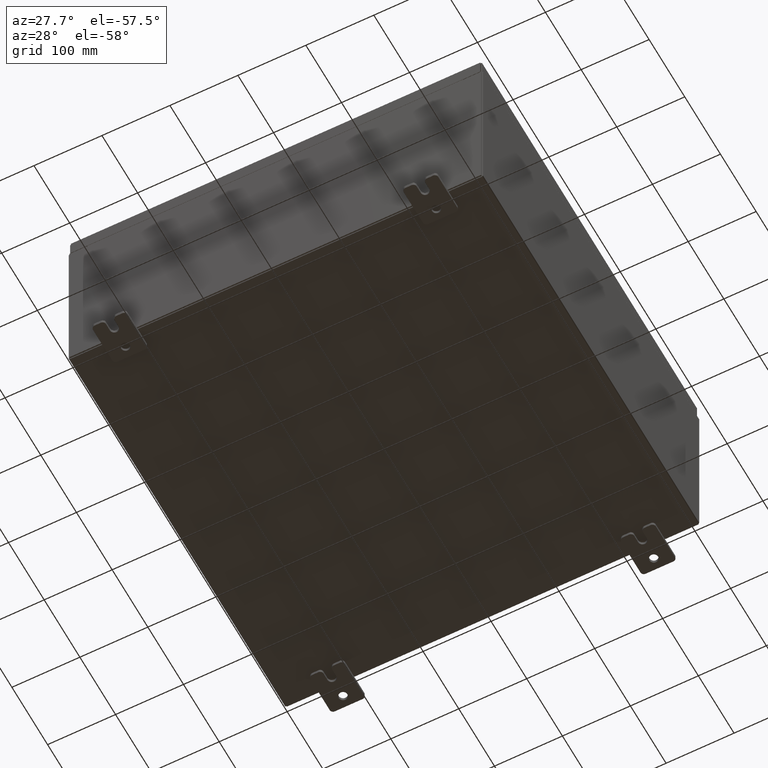
[diagram: clean part render]
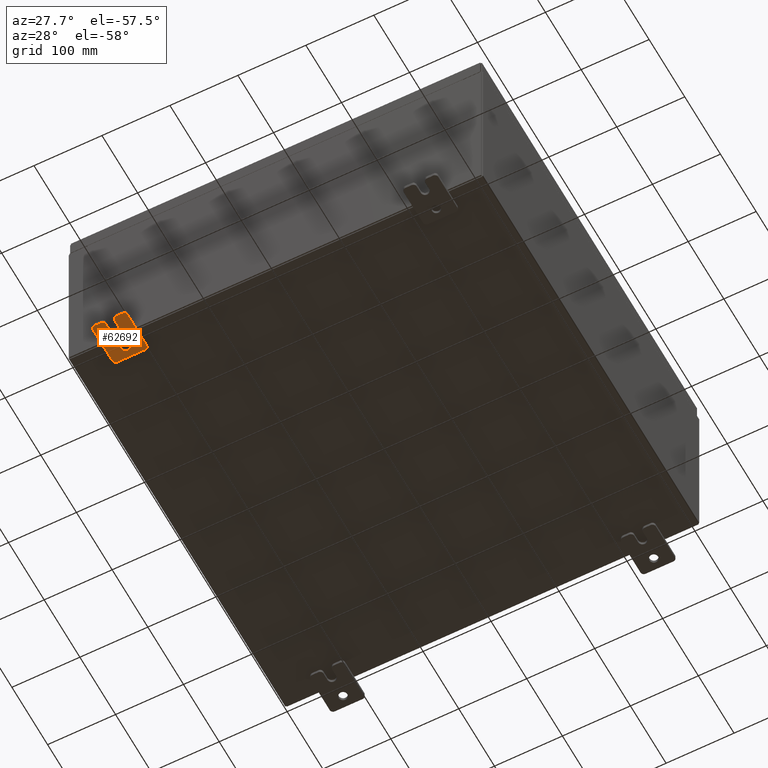
[diagram: same view with one face highlighted and labeled with its STEP entity id]
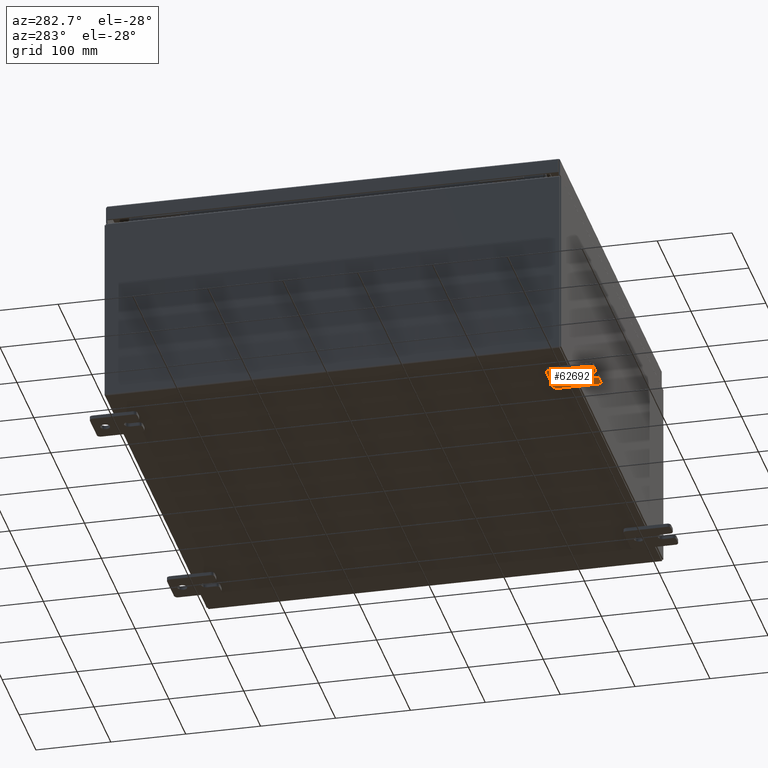
[diagram: same view with one face highlighted and labeled with its STEP entity id]
A machine part, auxiliary view. The second image highlights one B-rep face of the part: STEP entity #62692.
A second angle (auxiliary view) of the same face is appended — the face is thin or edge-on in the first view.
In plain terms, the highlighted planar face has unit normal (0, 0, 1).
Its self-contained STEP definition (entity closure, byte-faithful):
#753 = CARTESIAN_POINT ( 'NONE',  ( -0.1879999999999997800, -1.060000000000004500, -1.000000000000006400 ) ) ;
#2396 = DIRECTION ( 'NONE',  ( 0.0000000000000000000, 0.0000000000000000000, -1.000000000000000000 ) ) ;
#3630 = CARTESIAN_POINT ( 'NONE',  ( -0.1879999999999997800, -1.060000000000004100, -0.8100000000000050500 ) ) ;
#3857 = CIRCLE ( 'NONE', #50356, 0.2499999999999999200 ) ;
#4224 = CIRCLE ( 'NONE', #24791, 0.1900000000000011100 ) ;
#4957 = DIRECTION ( 'NONE',  ( 0.0000000000000000000, -1.000000000000000000, 1.639108796198558100E-015 ) ) ;
#5445 = CARTESIAN_POINT ( 'NONE',  ( -0.1880000000000010000, 0.6249999999999992200, -7.703811342100550500E-020 ) ) ;
#5534 = CARTESIAN_POINT ( 'NONE',  ( -0.1879999999999997800, -1.250000000000002200, 0.9999999999999992200 ) ) ;
#5810 = EDGE_CURVE ( 'NONE', #9094, #47344, #49678, .T. ) ;
#6137 = DIRECTION ( 'NONE',  ( 1.000000000000000000, -0.0000000000000000000, -5.163192708025532000E-017 ) ) ;
#6391 = ORIENTED_EDGE ( 'NONE', *, *, #31297, .T. ) ;
#6498 = CIRCLE ( 'NONE', #7094, 0.1900000000000011100 ) ;
#7094 = AXIS2_PLACEMENT_3D ( 'NONE', #54178, #24870, #59098 ) ;
#7581 = DIRECTION ( 'NONE',  ( -1.000000000000000000, -0.0000000000000000000, 0.0000000000000000000 ) ) ;
#7599 = ORIENTED_EDGE ( 'NONE', *, *, #14233, .F. ) ;
#7979 = CARTESIAN_POINT ( 'NONE',  ( -0.1879999999999997800, 1.059999999999996500, 0.9999999999999953400 ) ) ;
#8082 = DIRECTION ( 'NONE',  ( 0.0000000000000000000, -1.639108796198553600E-015, -1.000000000000000000 ) ) ;
#8094 = VERTEX_POINT ( 'NONE', #32330 ) ;
#8434 = EDGE_CURVE ( 'NONE', #52434, #12343, #9009, .T. ) ;
#8609 = DIRECTION ( 'NONE',  ( 0.0000000000000000000, 0.0000000000000000000, -1.000000000000000000 ) ) ;
#8842 = CIRCLE ( 'NONE', #39521, 0.2499999999999999200 ) ;
#9009 = LINE ( 'NONE', #9942, #33533 ) ;
#9094 = VERTEX_POINT ( 'NONE', #46662 ) ;
#9205 = CARTESIAN_POINT ( 'NONE',  ( -0.1879999999999997800, -1.250000000000002200, 0.9999999999999992200 ) ) ;
#9411 = EDGE_LOOP ( 'NONE', ( #21074, #61068 ) ) ;
#9583 = ORIENTED_EDGE ( 'NONE', *, *, #43648, .T. ) ;
#9942 = CARTESIAN_POINT ( 'NONE',  ( -0.1879999999999997800, 1.249999999999997600, 0.9999999999999951200 ) ) ;
#10431 = DIRECTION ( 'NONE',  ( 0.0000000000000000000, 0.0000000000000000000, -1.000000000000000000 ) ) ;
#10588 = VECTOR ( 'NONE', #8082, 39.37007874015748100 ) ;
#10639 = CARTESIAN_POINT ( 'NONE',  ( -0.1880000000000001900, -0.6249999999999992200, -0.2499999999999998600 ) ) ;
#11586 = CARTESIAN_POINT ( 'NONE',  ( -0.1879999999999997800, 1.249999999999994200, -1.000000000000010400 ) ) ;
#12343 = VERTEX_POINT ( 'NONE', #31711 ) ;
#12510 = CIRCLE ( 'NONE', #13398, 0.1900000000000011400 ) ;
#13243 = CARTESIAN_POINT ( 'NONE',  ( -0.1880000000000010000, 0.6249999999999992200, 0.2499999999999999200 ) ) ;
#13398 = AXIS2_PLACEMENT_3D ( 'NONE', #21839, #56086, #26798 ) ;
#13506 = CARTESIAN_POINT ( 'NONE',  ( -0.1880000000000001900, -0.6249999999999992200, -0.2499999999999993900 ) ) ;
#13715 = DIRECTION ( 'NONE',  ( -1.000000000000000000, -0.0000000000000000000, 0.0000000000000000000 ) ) ;
#14233 = EDGE_CURVE ( 'NONE', #30300, #36972, #18603, .T. ) ;
#15710 = EDGE_CURVE ( 'NONE', #8094, #59767, #8842, .T. ) ;
#15847 = ORIENTED_EDGE ( 'NONE', *, *, #30987, .F. ) ;
#16779 = CARTESIAN_POINT ( 'NONE',  ( -0.1880000000000004700, -1.060000000000002100, 0.2500000000000005000 ) ) ;
#17338 = VERTEX_POINT ( 'NONE', #26486 ) ;
#17352 = ORIENTED_EDGE ( 'NONE', *, *, #8434, .F. ) ;
#17372 = AXIS2_PLACEMENT_3D ( 'NONE', #3630, #37939, #8609 ) ;
#17466 = CARTESIAN_POINT ( 'NONE',  ( -0.1879999999999997800, -1.250000000000005600, -1.000000000000006200 ) ) ;
#18603 = LINE ( 'NONE', #11586, #44640 ) ;
#19046 = EDGE_CURVE ( 'NONE', #50609, #47344, #12510, .T. ) ;
#19725 = CARTESIAN_POINT ( 'NONE',  ( -0.1879999999999997800, 1.059999999999993400, -1.000000000000010000 ) ) ;
#20259 = VERTEX_POINT ( 'NONE', #46683 ) ;
#21074 = ORIENTED_EDGE ( 'NONE', *, *, #15710, .T. ) ;
#21130 = CARTESIAN_POINT ( 'NONE',  ( -0.1880000000000001900, -0.6249999999999992200, 6.829619984160658000E-017 ) ) ;
#21283 = EDGE_CURVE ( 'NONE', #50609, #17338, #45278, .T. ) ;
#21839 = CARTESIAN_POINT ( 'NONE',  ( -0.1879999999999997800, -1.060000000000002100, 0.4400000000000016700 ) ) ;
#21986 = CARTESIAN_POINT ( 'NONE',  ( -0.1879999999999997800, 0.0000000000000000000, 0.0000000000000000000 ) ) ;
#22023 = EDGE_CURVE ( 'NONE', #36772, #42617, #23820, .T. ) ;
#23820 = LINE ( 'NONE', #13506, #36793 ) ;
#24791 = AXIS2_PLACEMENT_3D ( 'NONE', #61146, #31816, #2396 ) ;
#24870 = DIRECTION ( 'NONE',  ( -1.000000000000000000, -0.0000000000000000000, 0.0000000000000000000 ) ) ;
#24939 = FACE_BOUND ( 'NONE', #9411, .T. ) ;
#25626 = CARTESIAN_POINT ( 'NONE',  ( -0.1880000000000004700, -1.060000000000003400, -0.2499999999999994400 ) ) ;
#25730 = CIRCLE ( 'NONE', #48965, 0.1900000000000011100 ) ;
#26108 = DIRECTION ( 'NONE',  ( -6.829619984160660000E-016, -1.000000000000000000, 0.0000000000000000000 ) ) ;
#26486 = CARTESIAN_POINT ( 'NONE',  ( -0.1880000000000001900, -0.6249999999999992200, 0.2500000000000005000 ) ) ;
#26798 = DIRECTION ( 'NONE',  ( 0.0000000000000000000, 0.0000000000000000000, -1.000000000000000000 ) ) ;
#27787 = VERTEX_POINT ( 'NONE', #753 ) ;
#27986 = ORIENTED_EDGE ( 'NONE', *, *, #19046, .T. ) ;
#28541 = ORIENTED_EDGE ( 'NONE', *, *, #38150, .F. ) ;
#29087 = DIRECTION ( 'NONE',  ( 6.556435184794182400E-016, 1.000000000000000000, 0.0000000000000000000 ) ) ;
#30300 = VERTEX_POINT ( 'NONE', #62076 ) ;
#30553 = ORIENTED_EDGE ( 'NONE', *, *, #36924, .F. ) ;
#30723 = VECTOR ( 'NONE', #29087, 39.37007874015748100 ) ;
#30931 = EDGE_CURVE ( 'NONE', #52434, #36972, #4224, .T. ) ;
#30987 = EDGE_CURVE ( 'NONE', #27787, #58094, #51800, .T. ) ;
#31297 = EDGE_CURVE ( 'NONE', #20259, #42617, #6498, .T. ) ;
#31711 = CARTESIAN_POINT ( 'NONE',  ( -0.1879999999999997800, -1.060000000000001200, 0.9999999999999988900 ) ) ;
#31816 = DIRECTION ( 'NONE',  ( -1.000000000000000000, -0.0000000000000000000, 0.0000000000000000000 ) ) ;
#31828 = DIRECTION ( 'NONE',  ( -0.0000000000000000000, 0.0000000000000000000, -1.000000000000000000 ) ) ;
#32330 = CARTESIAN_POINT ( 'NONE',  ( -0.1880000000000010000, 0.6249999999999992200, -0.2499999999999999200 ) ) ;
#33533 = VECTOR ( 'NONE', #4957, 39.37007874015748100 ) ;
#35517 = CARTESIAN_POINT ( 'NONE',  ( -0.1880000000000010000, 0.6249999999999992200, -7.703811342100550500E-020 ) ) ;
#36365 = FACE_OUTER_BOUND ( 'NONE', #49728, .T. ) ;
#36772 = VERTEX_POINT ( 'NONE', #10639 ) ;
#36793 = VECTOR ( 'NONE', #42803, 39.37007874015748100 ) ;
#36921 = CARTESIAN_POINT ( 'NONE',  ( -0.1879999999999997800, -1.060000000000001600, 0.8099999999999978300 ) ) ;
#36924 = EDGE_CURVE ( 'NONE', #17338, #36772, #3857, .T. ) ;
#36972 = VERTEX_POINT ( 'NONE', #50686 ) ;
#37939 = DIRECTION ( 'NONE',  ( -1.000000000000000000, -0.0000000000000000000, 0.0000000000000000000 ) ) ;
#38150 = EDGE_CURVE ( 'NONE', #20259, #47234, #45202, .T. ) ;
#38646 = EDGE_CURVE ( 'NONE', #9094, #12343, #57467, .T. ) ;
#39521 = AXIS2_PLACEMENT_3D ( 'NONE', #35517, #6137, #40445 ) ;
#39748 = DIRECTION ( 'NONE',  ( 1.000000000000000000, -0.0000000000000000000, -5.163192708025532000E-017 ) ) ;
#40445 = DIRECTION ( 'NONE',  ( 0.0000000000000000000, 0.0000000000000000000, -1.000000000000000000 ) ) ;
#41324 = CARTESIAN_POINT ( 'NONE',  ( -0.1879999999999997800, -1.250000000000005300, -0.8100000000000047200 ) ) ;
#41864 = DIRECTION ( 'NONE',  ( 0.0000000000000000000, 7.189073667537492800E-016, -1.000000000000000000 ) ) ;
#42563 = CIRCLE ( 'NONE', #17372, 0.1900000000000011100 ) ;
#42617 = VERTEX_POINT ( 'NONE', #25626 ) ;
#42803 = DIRECTION ( 'NONE',  ( -6.556435184794182400E-016, -1.000000000000000000, -1.639108796198545600E-016 ) ) ;
#42993 = CARTESIAN_POINT ( 'NONE',  ( -0.1879999999999997800, 1.059999999999993600, -0.8100000000000089400 ) ) ;
#43011 = EDGE_CURVE ( 'NONE', #27787, #47234, #42563, .T. ) ;
#43648 = EDGE_CURVE ( 'NONE', #30300, #58094, #25730, .T. ) ;
#44250 = AXIS2_PLACEMENT_3D ( 'NONE', #36921, #7581, #41864 ) ;
#44609 = AXIS2_PLACEMENT_3D ( 'NONE', #5445, #39748, #10431 ) ;
#44640 = VECTOR ( 'NONE', #50779, 39.37007874015748100 ) ;
#45202 = LINE ( 'NONE', #5534, #56724 ) ;
#45278 = LINE ( 'NONE', #53494, #30723 ) ;
#46607 = ORIENTED_EDGE ( 'NONE', *, *, #22023, .F. ) ;
#46662 = CARTESIAN_POINT ( 'NONE',  ( -0.1879999999999997800, -1.250000000000002400, 0.8099999999999980500 ) ) ;
#46683 = CARTESIAN_POINT ( 'NONE',  ( -0.1879999999999997800, -1.250000000000004700, -0.4400000000000002200 ) ) ;
#47234 = VERTEX_POINT ( 'NONE', #41324 ) ;
#47344 = VERTEX_POINT ( 'NONE', #56761 ) ;
#47660 = ORIENTED_EDGE ( 'NONE', *, *, #21283, .F. ) ;
#47948 = DIRECTION ( 'NONE',  ( 0.0000000000000000000, 0.0000000000000000000, -1.000000000000000000 ) ) ;
#48965 = AXIS2_PLACEMENT_3D ( 'NONE', #42993, #13715, #47948 ) ;
#49678 = LINE ( 'NONE', #9205, #10588 ) ;
#49728 = EDGE_LOOP ( 'NONE', ( #50129, #57033, #17352, #55019, #7599, #9583, #15847, #61558, #28541, #6391, #46607, #30553, #47660, #27986 ) ) ;
#50129 = ORIENTED_EDGE ( 'NONE', *, *, #5810, .F. ) ;
#50356 = AXIS2_PLACEMENT_3D ( 'NONE', #21130, #55389, #26108 ) ;
#50609 = VERTEX_POINT ( 'NONE', #16779 ) ;
#50686 = CARTESIAN_POINT ( 'NONE',  ( -0.1879999999999997800, 1.249999999999997300, 0.8099999999999935000 ) ) ;
#50779 = DIRECTION ( 'NONE',  ( 0.0000000000000000000, 1.639108796198553600E-015, 1.000000000000000000 ) ) ;
#51321 = PLANE ( 'NONE',  #55880 ) ;
#51718 = DIRECTION ( 'NONE',  ( 0.0000000000000000000, 1.000000000000000000, -1.639108796198558100E-015 ) ) ;
#51800 = LINE ( 'NONE', #17466, #63279 ) ;
#52434 = VERTEX_POINT ( 'NONE', #7979 ) ;
#52746 = CIRCLE ( 'NONE', #44609, 0.2499999999999999200 ) ;
#53494 = CARTESIAN_POINT ( 'NONE',  ( -0.1880000000000005800, -1.250000000000003800, 0.2500000000000005000 ) ) ;
#54178 = CARTESIAN_POINT ( 'NONE',  ( -0.1879999999999997800, -1.060000000000003400, -0.4400000000000005000 ) ) ;
#54425 = DIRECTION ( 'NONE',  ( 0.0000000000000000000, -1.639108796198553600E-015, -1.000000000000000000 ) ) ;
#55019 = ORIENTED_EDGE ( 'NONE', *, *, #30931, .T. ) ;
#55389 = DIRECTION ( 'NONE',  ( -1.000000000000000000, 6.523827964459549700E-016, 5.163192708025532000E-017 ) ) ;
#55880 = AXIS2_PLACEMENT_3D ( 'NONE', #21986, #61159, #31828 ) ;
#56086 = DIRECTION ( 'NONE',  ( -1.000000000000000000, -0.0000000000000000000, 0.0000000000000000000 ) ) ;
#56724 = VECTOR ( 'NONE', #54425, 39.37007874015748100 ) ;
#56761 = CARTESIAN_POINT ( 'NONE',  ( -0.1879999999999997800, -1.250000000000003100, 0.4400000000000020000 ) ) ;
#57033 = ORIENTED_EDGE ( 'NONE', *, *, #38646, .T. ) ;
#57060 = EDGE_CURVE ( 'NONE', #59767, #8094, #52746, .T. ) ;
#57467 = CIRCLE ( 'NONE', #44250, 0.1900000000000011100 ) ;
#58094 = VERTEX_POINT ( 'NONE', #19725 ) ;
#59098 = DIRECTION ( 'NONE',  ( 0.0000000000000000000, 0.0000000000000000000, -1.000000000000000000 ) ) ;
#59767 = VERTEX_POINT ( 'NONE', #13243 ) ;
#61068 = ORIENTED_EDGE ( 'NONE', *, *, #57060, .T. ) ;
#61146 = CARTESIAN_POINT ( 'NONE',  ( -0.1879999999999997800, 1.059999999999996300, 0.8099999999999938400 ) ) ;
#61159 = DIRECTION ( 'NONE',  ( 1.000000000000000000, 0.0000000000000000000, -0.0000000000000000000 ) ) ;
#61558 = ORIENTED_EDGE ( 'NONE', *, *, #43011, .T. ) ;
#62076 = CARTESIAN_POINT ( 'NONE',  ( -0.1879999999999997800, 1.249999999999994700, -0.8100000000000092700 ) ) ;
#62692 = ADVANCED_FACE ( 'NONE', ( #24939, #36365 ), #51321, .F. ) ;
#63279 = VECTOR ( 'NONE', #51718, 39.37007874015748100 ) ;